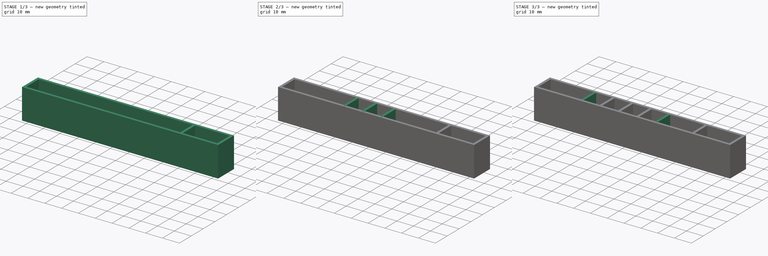
[diagram: build sequence overview — one tinted view per stage of 3, left to right]
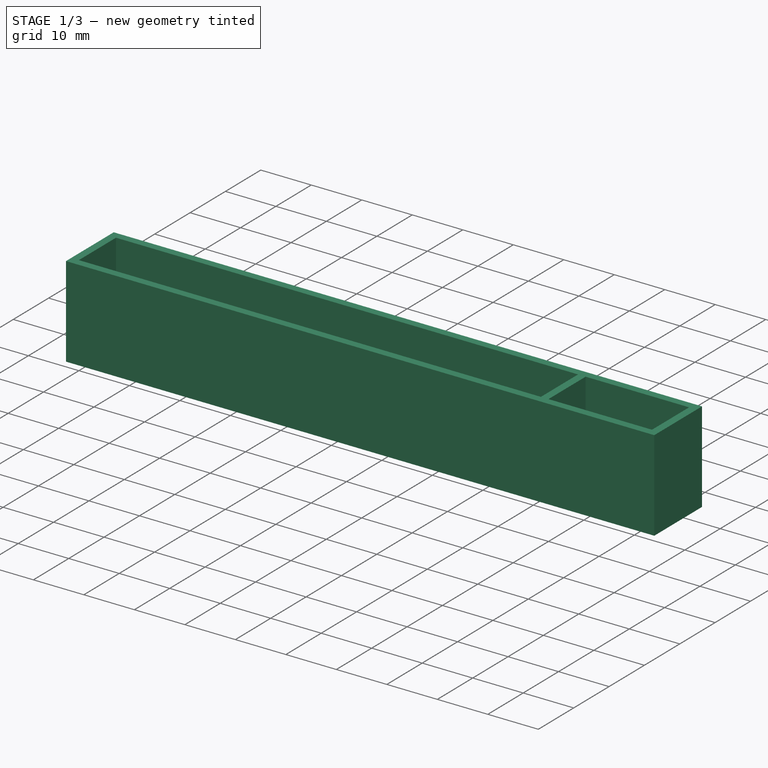
[diagram: stage 1 of 3 — iso view after this stage's code; geometry added in this stage tinted green]
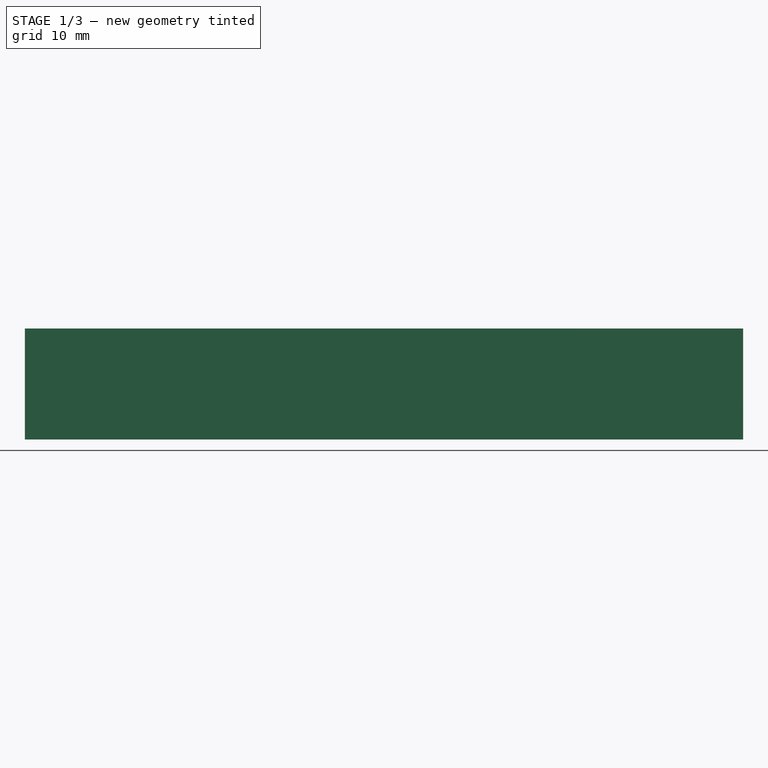
[diagram: stage 1 of 3 — front view after this stage's code; geometry added in this stage tinted green]
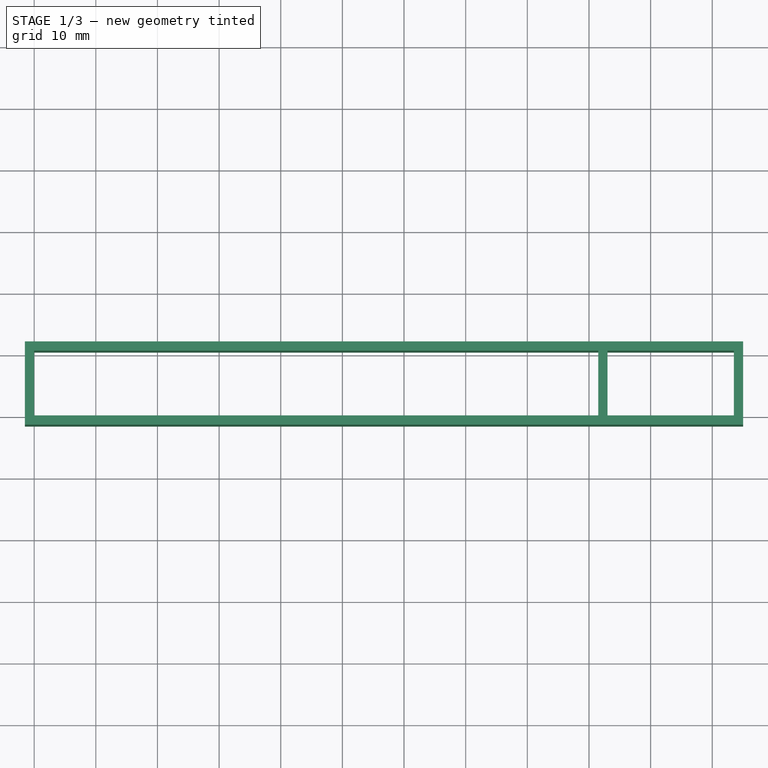
[diagram: stage 1 of 3 — top view after this stage's code; geometry added in this stage tinted green]
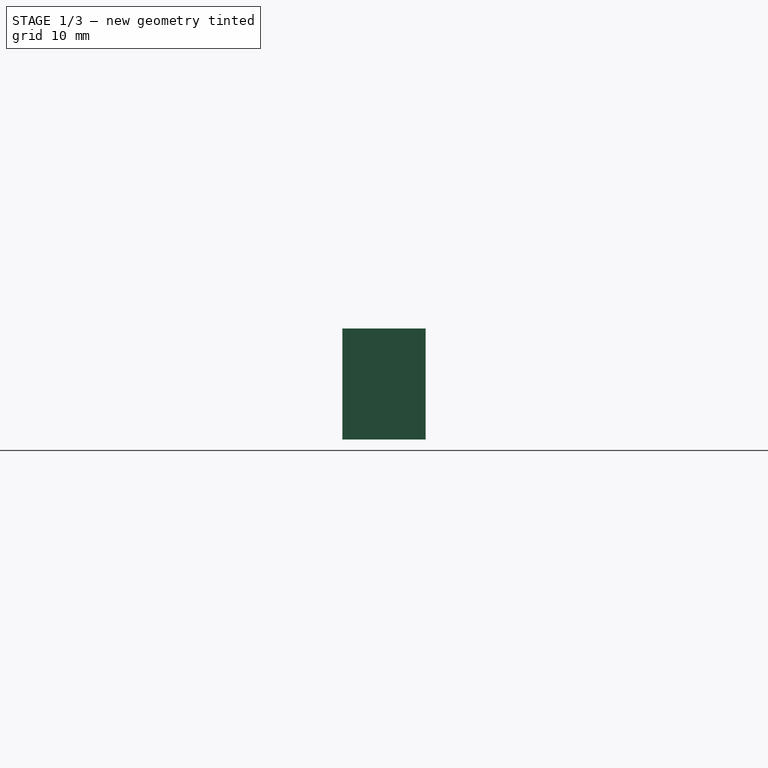
[diagram: stage 1 of 3 — right view after this stage's code; geometry added in this stage tinted green]
FCSTD DOCUMENT  (FreeCAD 0.18R)
Label: splice_box
License: All rights reserved
LicenseURL: http://en.wikipedia.org/wiki/All_rights_reserved
objects: Sketcher::SketchObject×7, Part::Extrusion×7
note: 14 computed .brp shape members not serialized (recipe doc carries the construction recipe); baked Part::Feature solids carry a one-line shape summary decoded from their .brp

FEATURE [Sketcher::SketchObject] Sketch005  label="16c1r-sketch"
  sketch-geometry (14):
    g0: LineSegment StartX=0 StartY=0 StartZ=0 EndX=91.5 EndY=0 EndZ=0
    g1: LineSegment StartX=91.5 StartY=0 StartZ=0 EndX=91.5 EndY=10.5 EndZ=0
    g2: LineSegment StartX=91.5 StartY=10.5 StartZ=0 EndX=0 EndY=10.5 EndZ=0
    g3: LineSegment StartX=0 StartY=10.5 StartZ=0 EndX=0 EndY=0 EndZ=0
    g4: LineSegment StartX=-1.5 StartY=-1.5 StartZ=0 EndX=93 EndY=-1.5 EndZ=0
    g5: LineSegment StartX=93 StartY=-1.5 StartZ=0 EndX=93 EndY=12 EndZ=0
    g6: LineSegment StartX=93 StartY=12 StartZ=0 EndX=-1.5 EndY=12 EndZ=0
    g7: LineSegment StartX=-1.5 StartY=12 StartZ=0 EndX=-1.5 EndY=-1.5 EndZ=0
    g8: LineSegment [constr] StartX=0 StartY=0 StartZ=0 EndX=0 EndY=-1.5 EndZ=0
    g9: LineSegment [constr] StartX=0 StartY=0 StartZ=0 EndX=-1.5 EndY=0 EndZ=0
    g10: LineSegment [constr] StartX=91.5 StartY=10.5 StartZ=0 EndX=93 EndY=10.5 EndZ=0
    g11: LineSegment [constr] StartX=91.5 StartY=10.5 StartZ=0 EndX=91.5 EndY=12 EndZ=0
    g12: LineSegment [constr] StartX=0 StartY=5.25 StartZ=0 EndX=89 EndY=5.25 EndZ=0
    g13: LineSegment [constr] StartX=89 StartY=5.25 StartZ=0 EndX=91.5 EndY=5.25 EndZ=0
  constraints (41):
    c: Coincident(g0,g1)
    c: Coincident(g1,g2)
    c: Coincident(g2,g3)
    c: Coincident(g3,g0)
    c: Horizontal(g0)
    c: Horizontal(g2)
    c: Vertical(g1)
    c: Vertical(g3)
    c: Coincident(g0,g-1)
    c: DistanceY(g3,g3) = 10.5
    c: Coincident(g4,g5)
    c: Coincident(g5,g6)
    c: Coincident(g6,g7)
    c: Coincident(g7,g4)
    c: Horizontal(g4)
    c: Horizontal(g6)
    c: Vertical(g5)
    c: Vertical(g7)
    c: Coincident(g8,g0)
    c: PointOnObject(g8,g4)
    c: Vertical(g8)
    c: Coincident(g9,g0)
    c: Horizontal(g9)
    c: Coincident(g10,g1)
    c: PointOnObject(g10,g5)
    c: Horizontal(g10)
    c: Coincident(g11,g1)
    c: PointOnObject(g11,g6)
    c: Vertical(g11)
    c: Equal(g11,g10)
    c: Equal(g10,g9)
    c: Equal(g9,g8)
    c: PointOnObject(g9,g7)
    c: DistanceY(g8,g8) = 1.5
    c: Horizontal(g12)
    c: Symmetric(g3,g3,g12)
    c: Coincident(g13,g12)
    c: PointOnObject(g13,g1)
    c: Horizontal(g13)
    c: DistanceX(g12,g12) = 89
    c: DistanceX(g13,g13) = 2.5
FEATURE [Part::Extrusion] Extrude005  label="16c1r"
  Base = -> Sketch005
  Dir = (0,0,1)
  DirMode = 2
  FaceMakerClass = Part::FaceMakerBullseye
  LengthFwd = 18
  LengthRev = 0
  Solid = true
  Symmetric = false
FEATURE [Sketcher::SketchObject] Sketch006  label="20c1r-sketch"
  sketch-geometry (14):
    g0: LineSegment StartX=0 StartY=0 StartZ=0 EndX=113.5 EndY=0 EndZ=0
    g1: LineSegment StartX=113.5 StartY=0 StartZ=0 EndX=113.5 EndY=10.5 EndZ=0
    g2: LineSegment StartX=113.5 StartY=10.5 StartZ=0 EndX=0 EndY=10.5 EndZ=0
    g3: LineSegment StartX=0 StartY=10.5 StartZ=0 EndX=0 EndY=0 EndZ=0
    g4: LineSegment StartX=-1.5 StartY=-1.5 StartZ=0 EndX=115 EndY=-1.5 EndZ=0
    g5: LineSegment StartX=115 StartY=-1.5 StartZ=0 EndX=115 EndY=12 EndZ=0
    g6: LineSegment StartX=115 StartY=12 StartZ=0 EndX=-1.5 EndY=12 EndZ=0
    g7: LineSegment StartX=-1.5 StartY=12 StartZ=0 EndX=-1.5 EndY=-1.5 EndZ=0
    g8: LineSegment [constr] StartX=0 StartY=0 StartZ=0 EndX=0 EndY=-1.5 EndZ=0
    g9: LineSegment [constr] StartX=0 StartY=0 StartZ=0 EndX=-1.5 EndY=0 EndZ=0
    g10: LineSegment [constr] StartX=113.5 StartY=10.5 StartZ=0 EndX=115 EndY=10.5 EndZ=0
    g11: LineSegment [constr] StartX=113.5 StartY=10.5 StartZ=0 EndX=113.5 EndY=12 EndZ=0
    g12: LineSegment [constr] StartX=0 StartY=5.25 StartZ=0 EndX=111 EndY=5.25 EndZ=0
    g13: LineSegment [constr] StartX=111 StartY=5.25 StartZ=0 EndX=113.5 EndY=5.25 EndZ=0
  constraints (41):
    c: Coincident(g0,g1)
    c: Coincident(g1,g2)
    c: Coincident(g2,g3)
    c: Coincident(g3,g0)
    c: Horizontal(g0)
    c: Horizontal(g2)
    c: Vertical(g1)
    c: Vertical(g3)
    c: Coincident(g0,g-1)
    c: DistanceY(g3,g3) = 10.5
    c: Coincident(g4,g5)
    c: Coincident(g5,g6)
    c: Coincident(g6,g7)
    c: Coincident(g7,g4)
    c: Horizontal(g4)
    c: Horizontal(g6)
    c: Vertical(g5)
    c: Vertical(g7)
    c: Coincident(g8,g0)
    c: PointOnObject(g8,g4)
    c: Vertical(g8)
    c: Coincident(g9,g0)
    c: Horizontal(g9)
    c: Coincident(g10,g1)
    c: PointOnObject(g10,g5)
    c: Horizontal(g10)
    c: Coincident(g11,g1)
    c: PointOnObject(g11,g6)
    c: Vertical(g11)
    c: Equal(g11,g10)
    c: Equal(g10,g9)
    c: Equal(g9,g8)
    c: PointOnObject(g9,g7)
    c: DistanceY(g8,g8) = 1.5
    c: Horizontal(g12)
    c: Symmetric(g3,g3,g12)
    c: Coincident(g13,g12)
    c: PointOnObject(g13,g1)
    c: Horizontal(g13)
    c: DistanceX(g12,g12) = 111
    c: DistanceX(g13,g13) = 2.5
FEATURE [Part::Extrusion] Extrude006  label="20c1r"
  Base = -> Sketch006
  Dir = (0,0,1)
  DirMode = 2
  FaceMakerClass = Part::FaceMakerBullseye
  LengthFwd = 18
  LengthRev = 0
  Solid = true
  Symmetric = false
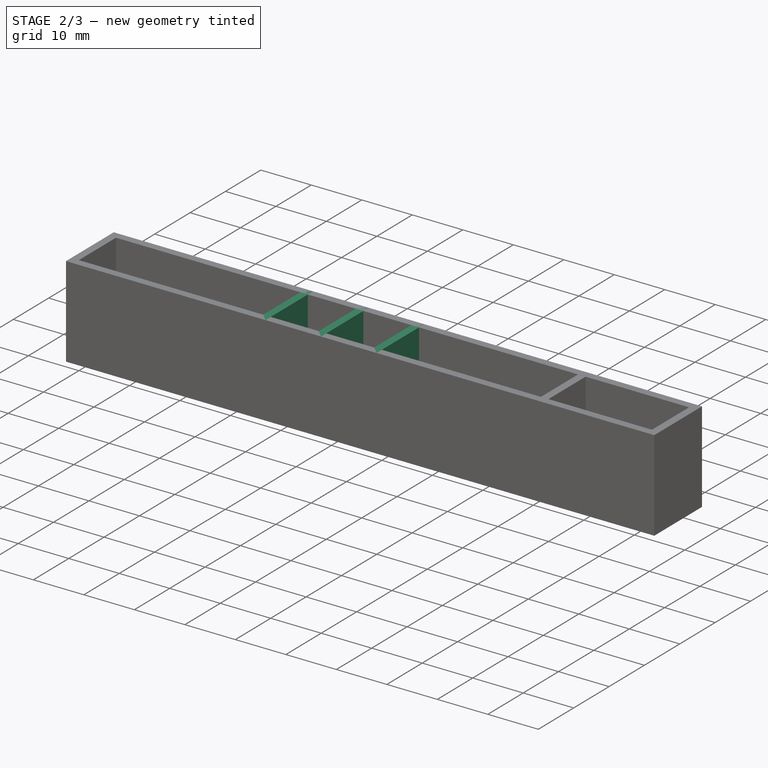
[diagram: stage 2 of 3 — iso view after this stage's code; geometry added in this stage tinted green]
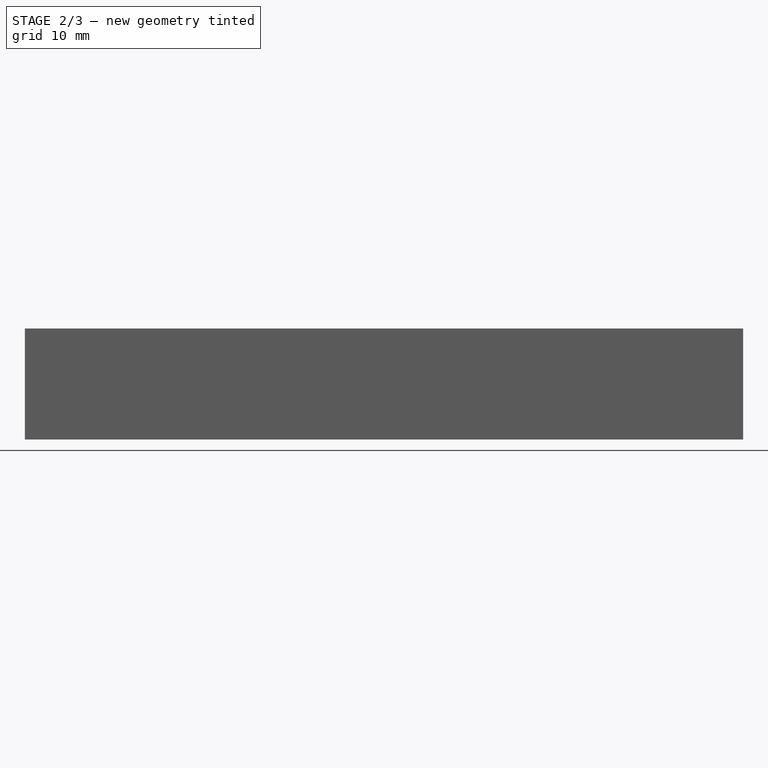
[diagram: stage 2 of 3 — front view after this stage's code; geometry added in this stage tinted green]
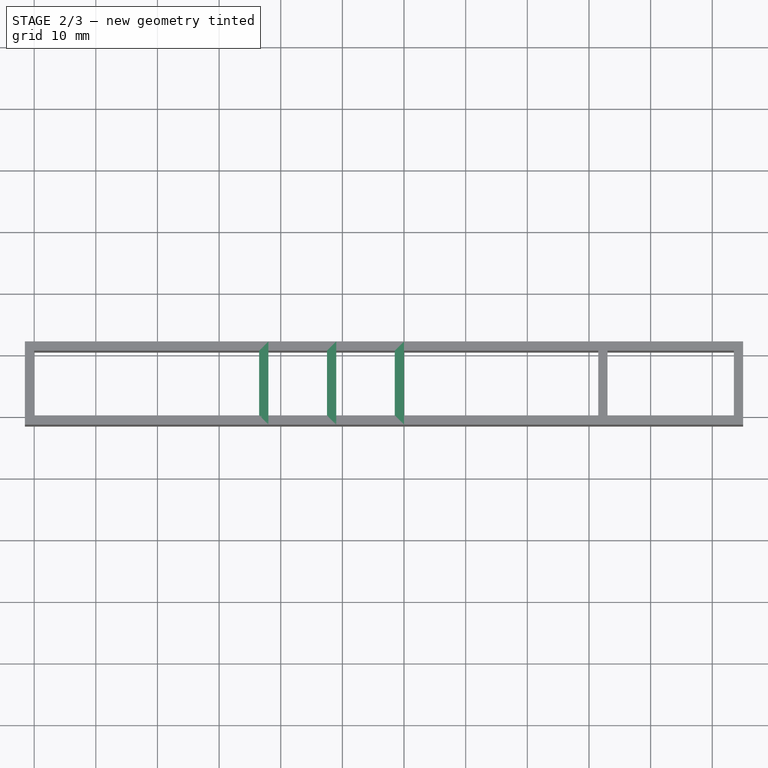
[diagram: stage 2 of 3 — top view after this stage's code; geometry added in this stage tinted green]
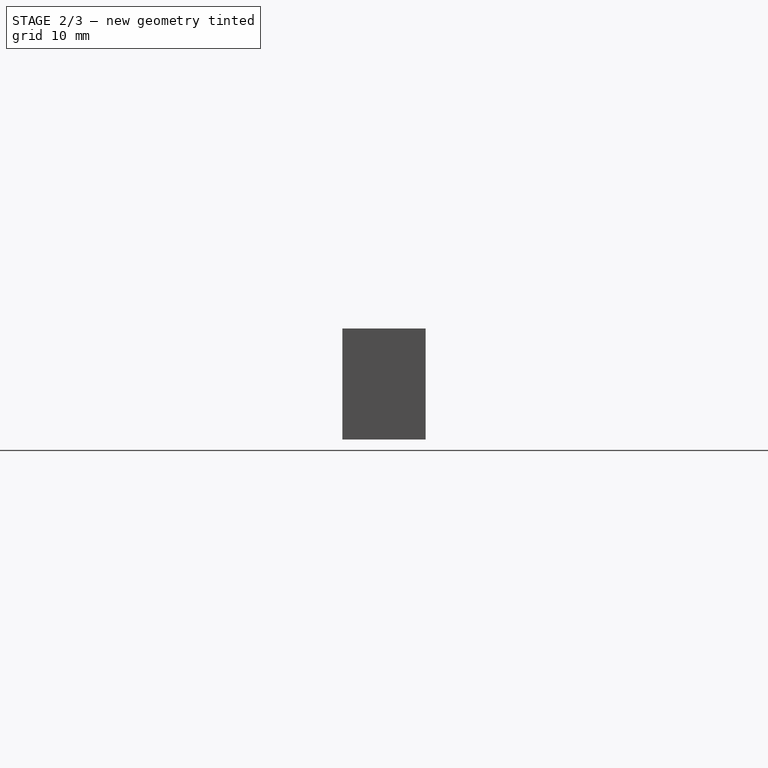
[diagram: stage 2 of 3 — right view after this stage's code; geometry added in this stage tinted green]
FEATURE [Sketcher::SketchObject] Sketch002  label="6c1r-sketch"
  sketch-geometry (14):
    g0: LineSegment StartX=0 StartY=0 StartZ=0 EndX=36.5 EndY=0 EndZ=0
    g1: LineSegment StartX=36.5 StartY=0 StartZ=0 EndX=36.5 EndY=10.5 EndZ=0
    g2: LineSegment StartX=36.5 StartY=10.5 StartZ=0 EndX=0 EndY=10.5 EndZ=0
    g3: LineSegment StartX=0 StartY=10.5 StartZ=0 EndX=0 EndY=0 EndZ=0
    g4: LineSegment StartX=-1.5 StartY=-1.5 StartZ=0 EndX=38 EndY=-1.5 EndZ=0
    g5: LineSegment StartX=38 StartY=-1.5 StartZ=0 EndX=38 EndY=12 EndZ=0
    g6: LineSegment StartX=38 StartY=12 StartZ=0 EndX=-1.5 EndY=12 EndZ=0
    g7: LineSegment StartX=-1.5 StartY=12 StartZ=0 EndX=-1.5 EndY=-1.5 EndZ=0
    g8: LineSegment [constr] StartX=0 StartY=0 StartZ=0 EndX=0 EndY=-1.5 EndZ=0
    g9: LineSegment [constr] StartX=0 StartY=0 StartZ=0 EndX=-1.5 EndY=0 EndZ=0
    g10: LineSegment [constr] StartX=36.5 StartY=10.5 StartZ=0 EndX=38 EndY=10.5 EndZ=0
    g11: LineSegment [constr] StartX=36.5 StartY=10.5 StartZ=0 EndX=36.5 EndY=12 EndZ=0
    g12: LineSegment [constr] StartX=0 StartY=5.25 StartZ=0 EndX=34 EndY=5.25 EndZ=0
    g13: LineSegment [constr] StartX=34 StartY=5.25 StartZ=0 EndX=36.5 EndY=5.25 EndZ=0
  constraints (41):
    c: Coincident(g0,g1)
    c: Coincident(g1,g2)
    c: Coincident(g2,g3)
    c: Coincident(g3,g0)
    c: Horizontal(g0)
    c: Horizontal(g2)
    c: Vertical(g1)
    c: Vertical(g3)
    c: Coincident(g0,g-1)
    c: DistanceY(g3,g3) = 10.5
    c: Coincident(g4,g5)
    c: Coincident(g5,g6)
    c: Coincident(g6,g7)
    c: Coincident(g7,g4)
    c: Horizontal(g4)
    c: Horizontal(g6)
    c: Vertical(g5)
    c: Vertical(g7)
    c: Coincident(g8,g0)
    c: PointOnObject(g8,g4)
    c: Vertical(g8)
    c: Coincident(g9,g0)
    c: Horizontal(g9)
    c: Coincident(g10,g1)
    c: PointOnObject(g10,g5)
    c: Horizontal(g10)
    c: Coincident(g11,g1)
    c: PointOnObject(g11,g6)
    c: Vertical(g11)
    c: Equal(g11,g10)
    c: Equal(g10,g9)
    c: Equal(g9,g8)
    c: PointOnObject(g9,g7)
    c: DistanceY(g8,g8) = 1.5
    c: Horizontal(g12)
    c: Symmetric(g3,g3,g12)
    c: Coincident(g13,g12)
    c: PointOnObject(g13,g1)
    c: Horizontal(g13)
    c: DistanceX(g12,g12) = 34
    c: DistanceX(g13,g13) = 2.5
FEATURE [Part::Extrusion] Extrude002  label="6c1r"
  Base = -> Sketch002
  Dir = (0,0,1)
  DirMode = 2
  FaceMakerClass = Part::FaceMakerBullseye
  LengthFwd = 18
  LengthRev = 0
  Solid = true
  Symmetric = false
FEATURE [Sketcher::SketchObject] Sketch003  label="8c1r-sketch"
  sketch-geometry (14):
    g0: LineSegment StartX=0 StartY=0 StartZ=0 EndX=47.5 EndY=0 EndZ=0
    g1: LineSegment StartX=47.5 StartY=0 StartZ=0 EndX=47.5 EndY=10.5 EndZ=0
    g2: LineSegment StartX=47.5 StartY=10.5 StartZ=0 EndX=0 EndY=10.5 EndZ=0
    g3: LineSegment StartX=0 StartY=10.5 StartZ=0 EndX=0 EndY=0 EndZ=0
    g4: LineSegment StartX=-1.5 StartY=-1.5 StartZ=0 EndX=49 EndY=-1.5 EndZ=0
    g5: LineSegment StartX=49 StartY=-1.5 StartZ=0 EndX=49 EndY=12 EndZ=0
    g6: LineSegment StartX=49 StartY=12 StartZ=0 EndX=-1.5 EndY=12 EndZ=0
    g7: LineSegment StartX=-1.5 StartY=12 StartZ=0 EndX=-1.5 EndY=-1.5 EndZ=0
    g8: LineSegment [constr] StartX=0 StartY=0 StartZ=0 EndX=0 EndY=-1.5 EndZ=0
    g9: LineSegment [constr] StartX=0 StartY=0 StartZ=0 EndX=-1.5 EndY=0 EndZ=0
    g10: LineSegment [constr] StartX=47.5 StartY=10.5 StartZ=0 EndX=49 EndY=10.5 EndZ=0
    g11: LineSegment [constr] StartX=47.5 StartY=10.5 StartZ=0 EndX=47.5 EndY=12 EndZ=0
    g12: LineSegment [constr] StartX=0 StartY=5.25 StartZ=0 EndX=45 EndY=5.25 EndZ=0
    g13: LineSegment [constr] StartX=45 StartY=5.25 StartZ=0 EndX=47.5 EndY=5.25 EndZ=0
  constraints (41):
    c: Coincident(g0,g1)
    c: Coincident(g1,g2)
    c: Coincident(g2,g3)
    c: Coincident(g3,g0)
    c: Horizontal(g0)
    c: Horizontal(g2)
    c: Vertical(g1)
    c: Vertical(g3)
    c: Coincident(g0,g-1)
    c: DistanceY(g3,g3) = 10.5
    c: Coincident(g4,g5)
    c: Coincident(g5,g6)
    c: Coincident(g6,g7)
    c: Coincident(g7,g4)
    c: Horizontal(g4)
    c: Horizontal(g6)
    c: Vertical(g5)
    c: Vertical(g7)
    c: Coincident(g8,g0)
    c: PointOnObject(g8,g4)
    c: Vertical(g8)
    c: Coincident(g9,g0)
    c: Horizontal(g9)
    c: Coincident(g10,g1)
    c: PointOnObject(g10,g5)
    c: Horizontal(g10)
    c: Coincident(g11,g1)
    c: PointOnObject(g11,g6)
    c: Vertical(g11)
    c: Equal(g11,g10)
    c: Equal(g10,g9)
    c: Equal(g9,g8)
    c: PointOnObject(g9,g7)
    c: DistanceY(g8,g8) = 1.5
    c: Horizontal(g12)
    c: Symmetric(g3,g3,g12)
    c: Coincident(g13,g12)
    c: PointOnObject(g13,g1)
    c: Horizontal(g13)
    c: DistanceX(g12,g12) = 45
    c: DistanceX(g13,g13) = 2.5
FEATURE [Part::Extrusion] Extrude003  label="8c1r"
  Base = -> Sketch003
  Dir = (0,0,1)
  DirMode = 2
  FaceMakerClass = Part::FaceMakerBullseye
  LengthFwd = 18
  LengthRev = 0
  Solid = true
  Symmetric = false
FEATURE [Sketcher::SketchObject] Sketch004  label="10c1r-sketch"
  sketch-geometry (14):
    g0: LineSegment StartX=0 StartY=0 StartZ=0 EndX=58.5 EndY=0 EndZ=0
    g1: LineSegment StartX=58.5 StartY=0 StartZ=0 EndX=58.5 EndY=10.5 EndZ=0
    g2: LineSegment StartX=58.5 StartY=10.5 StartZ=0 EndX=0 EndY=10.5 EndZ=0
    g3: LineSegment StartX=0 StartY=10.5 StartZ=0 EndX=0 EndY=0 EndZ=0
    g4: LineSegment StartX=-1.5 StartY=-1.5 StartZ=0 EndX=60 EndY=-1.5 EndZ=0
    g5: LineSegment StartX=60 StartY=-1.5 StartZ=0 EndX=60 EndY=12 EndZ=0
    g6: LineSegment StartX=60 StartY=12 StartZ=0 EndX=-1.5 EndY=12 EndZ=0
    g7: LineSegment StartX=-1.5 StartY=12 StartZ=0 EndX=-1.5 EndY=-1.5 EndZ=0
    g8: LineSegment [constr] StartX=0 StartY=0 StartZ=0 EndX=0 EndY=-1.5 EndZ=0
    g9: LineSegment [constr] StartX=0 StartY=0 StartZ=0 EndX=-1.5 EndY=0 EndZ=0
    g10: LineSegment [constr] StartX=58.5 StartY=10.5 StartZ=0 EndX=60 EndY=10.5 EndZ=0
    g11: LineSegment [constr] StartX=58.5 StartY=10.5 StartZ=0 EndX=58.5 EndY=12 EndZ=0
    g12: LineSegment [constr] StartX=0 StartY=5.25 StartZ=0 EndX=56 EndY=5.25 EndZ=0
    g13: LineSegment [constr] StartX=56 StartY=5.25 StartZ=0 EndX=58.5 EndY=5.25 EndZ=0
  constraints (41):
    c: Coincident(g0,g1)
    c: Coincident(g1,g2)
    c: Coincident(g2,g3)
    c: Coincident(g3,g0)
    c: Horizontal(g0)
    c: Horizontal(g2)
    c: Vertical(g1)
    c: Vertical(g3)
    c: Coincident(g0,g-1)
    c: DistanceY(g3,g3) = 10.5
    c: Coincident(g4,g5)
    c: Coincident(g5,g6)
    c: Coincident(g6,g7)
    c: Coincident(g7,g4)
    c: Horizontal(g4)
    c: Horizontal(g6)
    c: Vertical(g5)
    c: Vertical(g7)
    c: Coincident(g8,g0)
    c: PointOnObject(g8,g4)
    c: Vertical(g8)
    c: Coincident(g9,g0)
    c: Horizontal(g9)
    c: Coincident(g10,g1)
    c: PointOnObject(g10,g5)
    c: Horizontal(g10)
    c: Coincident(g11,g1)
    c: PointOnObject(g11,g6)
    c: Vertical(g11)
    c: Equal(g11,g10)
    c: Equal(g10,g9)
    c: Equal(g9,g8)
    c: PointOnObject(g9,g7)
    c: DistanceY(g8,g8) = 1.5
    c: Horizontal(g12)
    c: Symmetric(g3,g3,g12)
    c: Coincident(g13,g12)
    c: PointOnObject(g13,g1)
    c: Horizontal(g13)
    c: DistanceX(g12,g12) = 56
    c: DistanceX(g13,g13) = 2.5
FEATURE [Part::Extrusion] Extrude004  label="10c1r"
  Base = -> Sketch004
  Dir = (0,0,1)
  DirMode = 2
  FaceMakerClass = Part::FaceMakerBullseye
  LengthFwd = 18
  LengthRev = 0
  Solid = true
  Symmetric = false
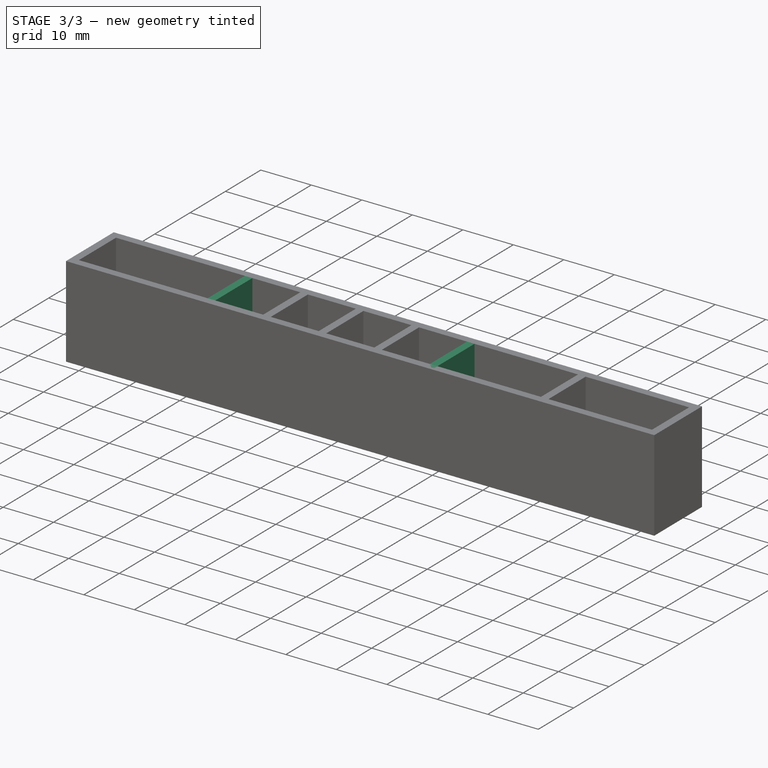
[diagram: stage 3 of 3 — iso view after this stage's code; geometry added in this stage tinted green]
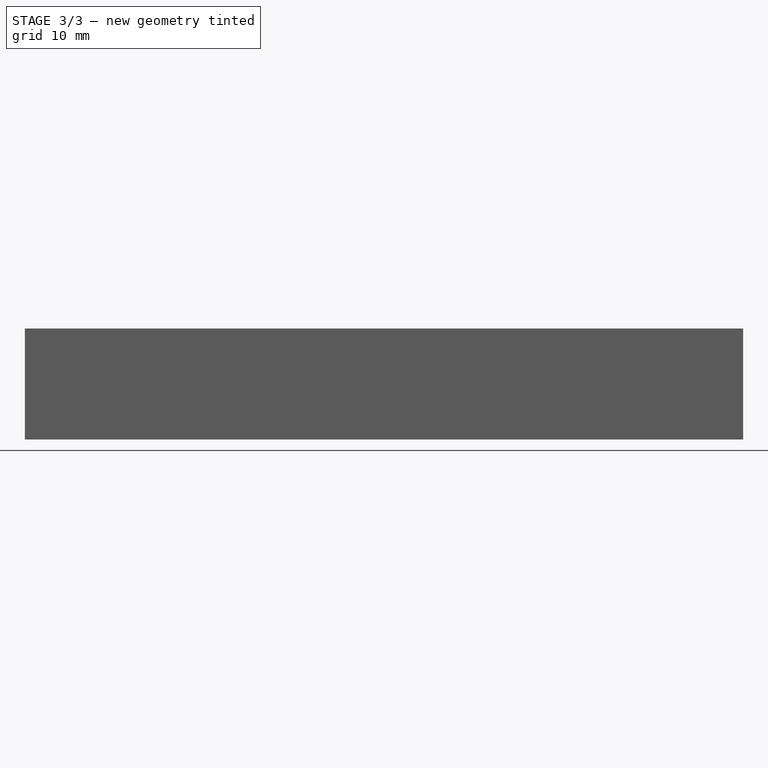
[diagram: stage 3 of 3 — front view after this stage's code; geometry added in this stage tinted green]
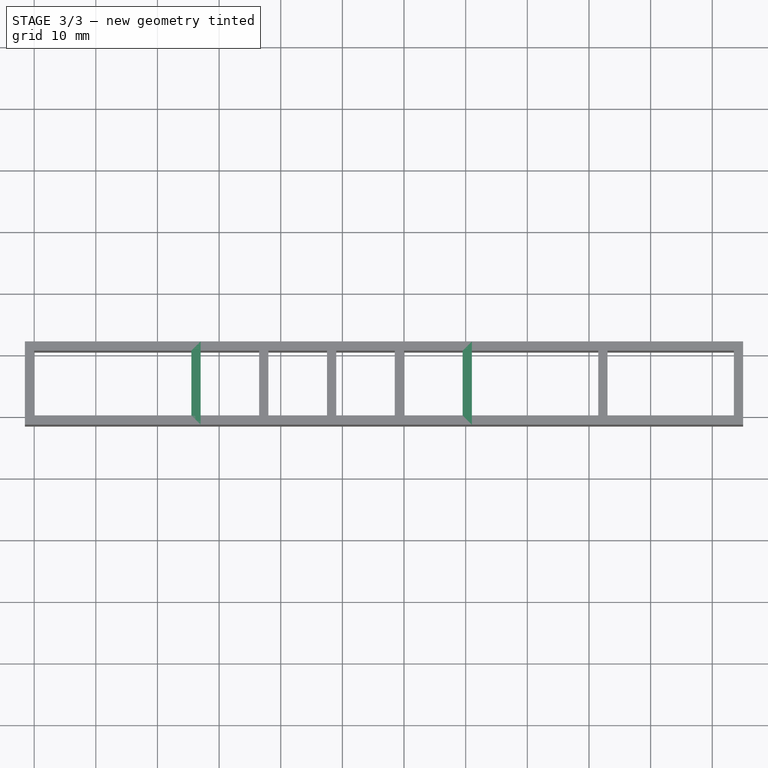
[diagram: stage 3 of 3 — top view after this stage's code; geometry added in this stage tinted green]
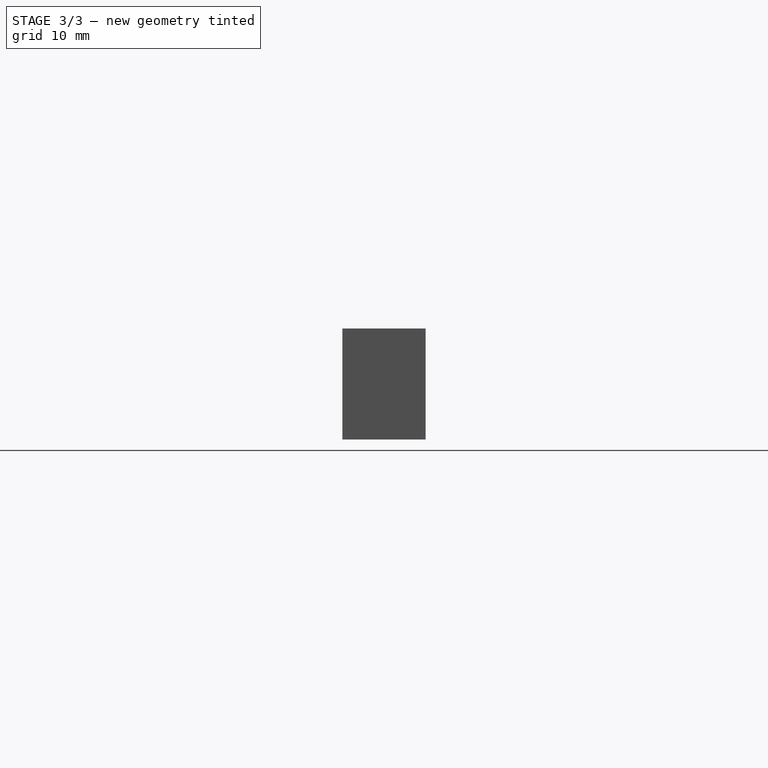
[diagram: stage 3 of 3 — right view after this stage's code; geometry added in this stage tinted green]
FEATURE [Sketcher::SketchObject] Sketch  label="12c1r-sketch"
  sketch-geometry (14):
    g0: LineSegment StartX=0 StartY=0 StartZ=0 EndX=69.5 EndY=0 EndZ=0
    g1: LineSegment StartX=69.5 StartY=0 StartZ=0 EndX=69.5 EndY=10.5 EndZ=0
    g2: LineSegment StartX=69.5 StartY=10.5 StartZ=0 EndX=0 EndY=10.5 EndZ=0
    g3: LineSegment StartX=0 StartY=10.5 StartZ=0 EndX=0 EndY=0 EndZ=0
    g4: LineSegment StartX=-1.5 StartY=-1.5 StartZ=0 EndX=71 EndY=-1.5 EndZ=0
    g5: LineSegment StartX=71 StartY=-1.5 StartZ=0 EndX=71 EndY=12 EndZ=0
    g6: LineSegment StartX=71 StartY=12 StartZ=0 EndX=-1.5 EndY=12 EndZ=0
    g7: LineSegment StartX=-1.5 StartY=12 StartZ=0 EndX=-1.5 EndY=-1.5 EndZ=0
    g8: LineSegment [constr] StartX=0 StartY=0 StartZ=0 EndX=0 EndY=-1.5 EndZ=0
    g9: LineSegment [constr] StartX=0 StartY=0 StartZ=0 EndX=-1.5 EndY=0 EndZ=0
    g10: LineSegment [constr] StartX=69.5 StartY=10.5 StartZ=0 EndX=71 EndY=10.5 EndZ=0
    g11: LineSegment [constr] StartX=69.5 StartY=10.5 StartZ=0 EndX=69.5 EndY=12 EndZ=0
    g12: LineSegment [constr] StartX=0 StartY=5.25 StartZ=0 EndX=67 EndY=5.25 EndZ=0
    g13: LineSegment [constr] StartX=67 StartY=5.25 StartZ=0 EndX=69.5 EndY=5.25 EndZ=0
  constraints (41):
    c: Coincident(g0,g1)
    c: Coincident(g1,g2)
    c: Coincident(g2,g3)
    c: Coincident(g3,g0)
    c: Horizontal(g0)
    c: Horizontal(g2)
    c: Vertical(g1)
    c: Vertical(g3)
    c: Coincident(g0,g-1)
    c: DistanceY(g3,g3) = 10.5
    c: Coincident(g4,g5)
    c: Coincident(g5,g6)
    c: Coincident(g6,g7)
    c: Coincident(g7,g4)
    c: Horizontal(g4)
    c: Horizontal(g6)
    c: Vertical(g5)
    c: Vertical(g7)
    c: Coincident(g8,g0)
    c: PointOnObject(g8,g4)
    c: Vertical(g8)
    c: Coincident(g9,g0)
    c: Horizontal(g9)
    c: Coincident(g10,g1)
    c: PointOnObject(g10,g5)
    c: Horizontal(g10)
    c: Coincident(g11,g1)
    c: PointOnObject(g11,g6)
    c: Vertical(g11)
    c: Equal(g11,g10)
    c: Equal(g10,g9)
    c: Equal(g9,g8)
    c: PointOnObject(g9,g7)
    c: DistanceY(g8,g8) = 1.5
    c: Horizontal(g12)
    c: Symmetric(g3,g3,g12)
    c: Coincident(g13,g12)
    c: PointOnObject(g13,g1)
    c: Horizontal(g13)
    c: DistanceX(g12,g12) = 67
    c: DistanceX(g13,g13) = 2.5
FEATURE [Part::Extrusion] Extrude  label="12c1r"
  Base = -> Sketch
  Dir = (0,0,1)
  DirMode = 2
  FaceMakerClass = Part::FaceMakerBullseye
  LengthFwd = 18
  LengthRev = 0
  Solid = true
  Symmetric = false
FEATURE [Sketcher::SketchObject] Sketch001  label="4c1r-sketch"
  sketch-geometry (14):
    g0: LineSegment StartX=0 StartY=0 StartZ=0 EndX=25.5 EndY=0 EndZ=0
    g1: LineSegment StartX=25.5 StartY=0 StartZ=0 EndX=25.5 EndY=10.5 EndZ=0
    g2: LineSegment StartX=25.5 StartY=10.5 StartZ=0 EndX=0 EndY=10.5 EndZ=0
    g3: LineSegment StartX=0 StartY=10.5 StartZ=0 EndX=0 EndY=0 EndZ=0
    g4: LineSegment StartX=-1.5 StartY=-1.5 StartZ=0 EndX=27 EndY=-1.5 EndZ=0
    g5: LineSegment StartX=27 StartY=-1.5 StartZ=0 EndX=27 EndY=12 EndZ=0
    g6: LineSegment StartX=27 StartY=12 StartZ=0 EndX=-1.5 EndY=12 EndZ=0
    g7: LineSegment StartX=-1.5 StartY=12 StartZ=0 EndX=-1.5 EndY=-1.5 EndZ=0
    g8: LineSegment [constr] StartX=0 StartY=0 StartZ=0 EndX=0 EndY=-1.5 EndZ=0
    g9: LineSegment [constr] StartX=0 StartY=0 StartZ=0 EndX=-1.5 EndY=0 EndZ=0
    g10: LineSegment [constr] StartX=25.5 StartY=10.5 StartZ=0 EndX=27 EndY=10.5 EndZ=0
    g11: LineSegment [constr] StartX=25.5 StartY=10.5 StartZ=0 EndX=25.5 EndY=12 EndZ=0
    g12: LineSegment [constr] StartX=0 StartY=5.25 StartZ=0 EndX=23 EndY=5.25 EndZ=0
    g13: LineSegment [constr] StartX=23 StartY=5.25 StartZ=0 EndX=25.5 EndY=5.25 EndZ=0
  constraints (41):
    c: Coincident(g0,g1)
    c: Coincident(g1,g2)
    c: Coincident(g2,g3)
    c: Coincident(g3,g0)
    c: Horizontal(g0)
    c: Horizontal(g2)
    c: Vertical(g1)
    c: Vertical(g3)
    c: Coincident(g0,g-1)
    c: DistanceY(g3,g3) = 10.5
    c: Coincident(g4,g5)
    c: Coincident(g5,g6)
    c: Coincident(g6,g7)
    c: Coincident(g7,g4)
    c: Horizontal(g4)
    c: Horizontal(g6)
    c: Vertical(g5)
    c: Vertical(g7)
    c: Coincident(g8,g0)
    c: PointOnObject(g8,g4)
    c: Vertical(g8)
    c: Coincident(g9,g0)
    c: Horizontal(g9)
    c: Coincident(g10,g1)
    c: PointOnObject(g10,g5)
    c: Horizontal(g10)
    c: Coincident(g11,g1)
    c: PointOnObject(g11,g6)
    c: Vertical(g11)
    c: Equal(g11,g10)
    c: Equal(g10,g9)
    c: Equal(g9,g8)
    c: PointOnObject(g9,g7)
    c: DistanceY(g8,g8) = 1.5
    c: Horizontal(g12)
    c: Symmetric(g3,g3,g12)
    c: Coincident(g13,g12)
    c: PointOnObject(g13,g1)
    c: Horizontal(g13)
    c: DistanceX(g12,g12) = 23
    c: DistanceX(g13,g13) = 2.5
FEATURE [Part::Extrusion] Extrude001  label="4c1r"
  Base = -> Sketch001
  Dir = (0,0,1)
  DirMode = 2
  FaceMakerClass = Part::FaceMakerBullseye
  LengthFwd = 18
  LengthRev = 0
  Solid = true
  Symmetric = false
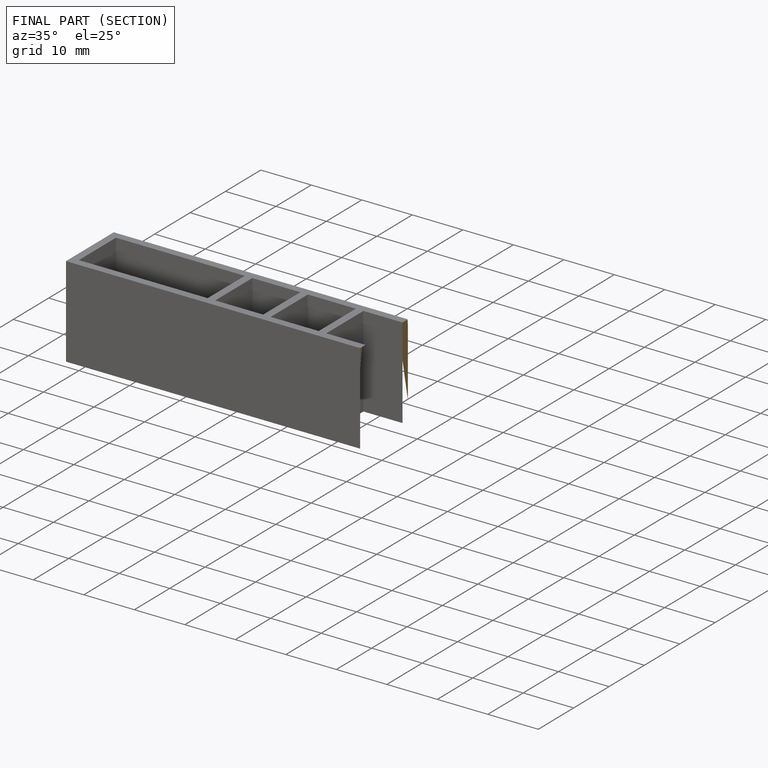
[diagram: finished part — half-section view (interior)]
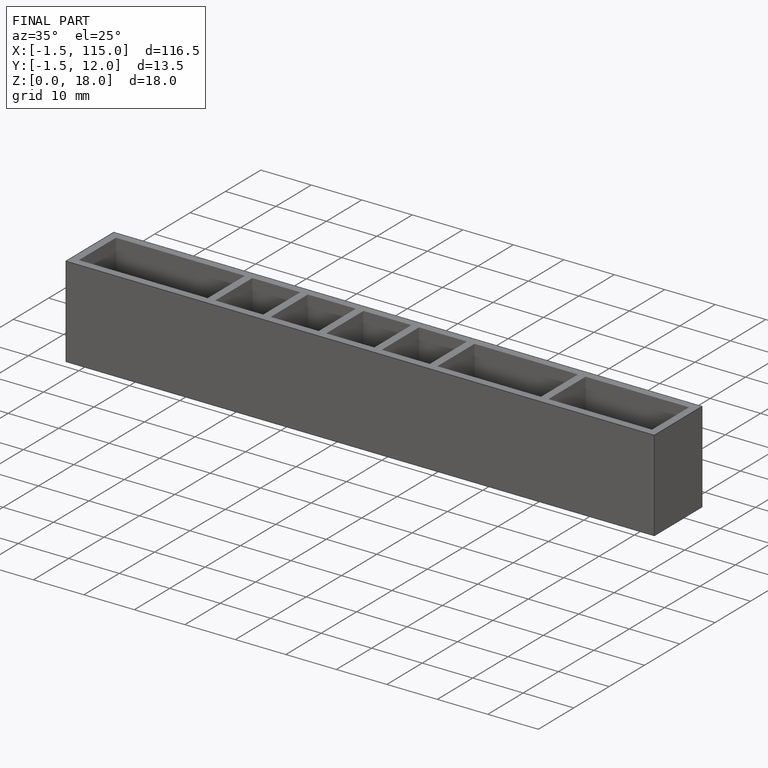
[diagram: finished part — iso view with bounding-box wireframe]
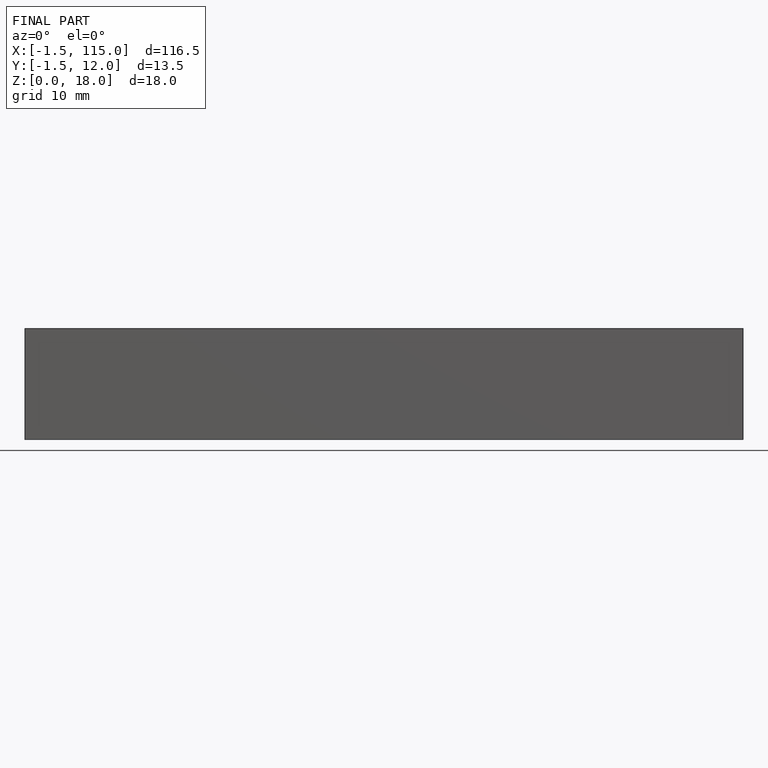
[diagram: finished part — front view with bounding-box wireframe]
